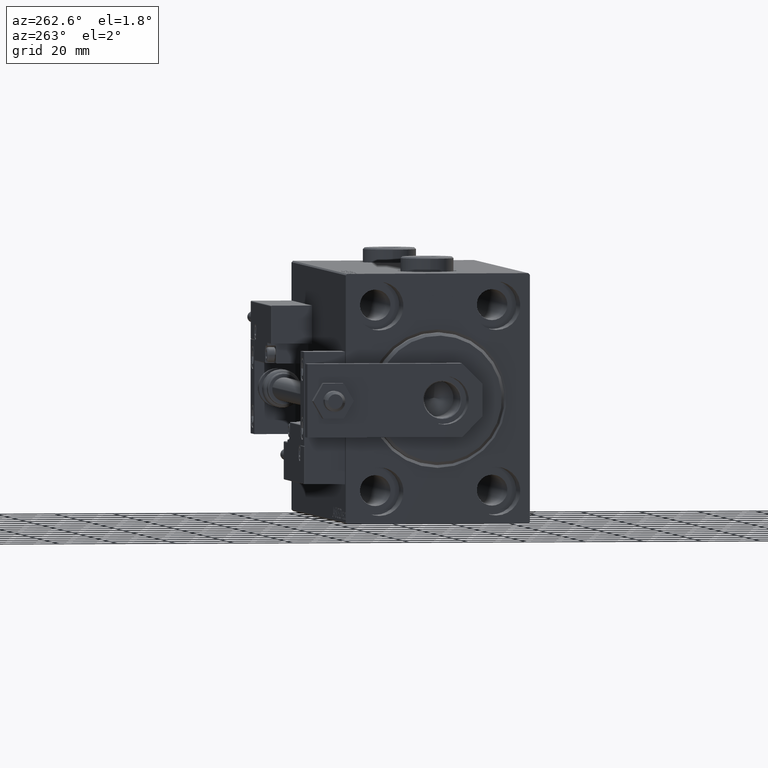
[diagram: clean part render]
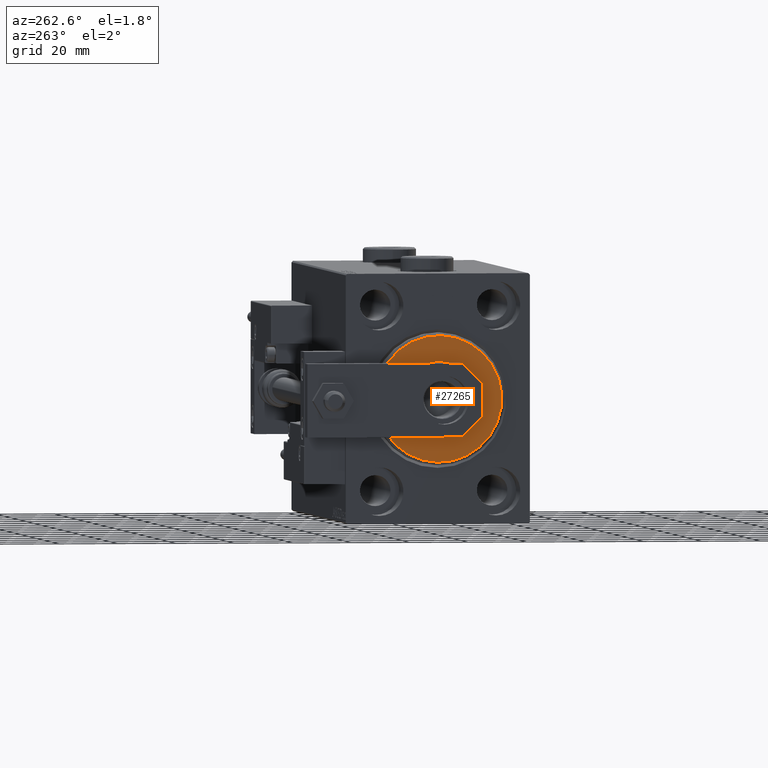
[diagram: same view with one face highlighted and labeled with its STEP entity id]
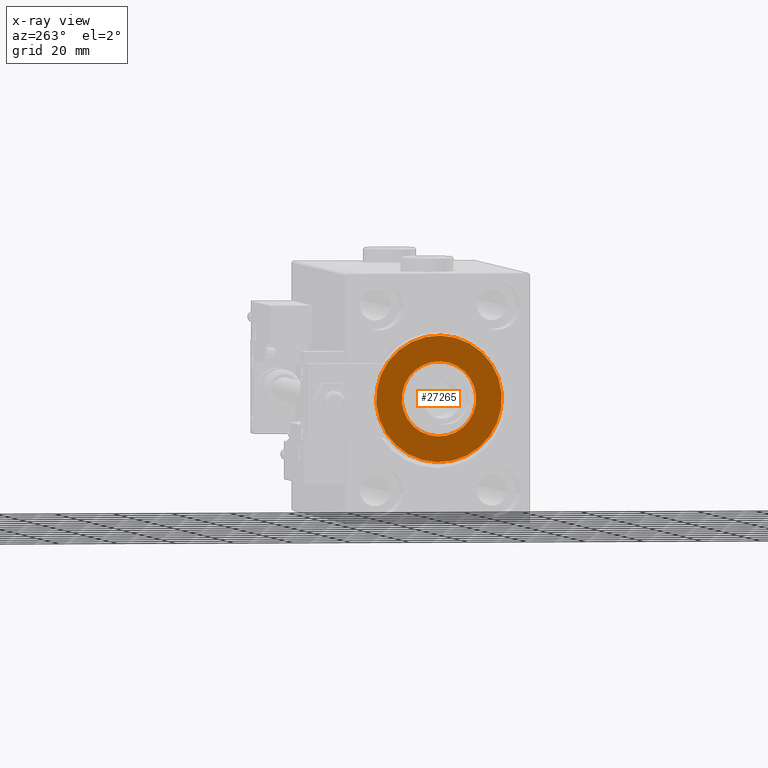
[diagram: x-ray of the same camera — body ghosted, the highlighted face saturated]
A machine part, auxiliary view. The second image highlights one B-rep face of the part: STEP entity #27265.
The next image is the same camera in x-ray: the body ghosted, the highlighted face saturated — about 0% of this face is hidden behind the body in this view.
In plain terms, the highlighted planar face has unit normal (-1, 0, 0).
Its self-contained STEP definition (entity closure, byte-faithful):
#934 = VERTEX_POINT ( 'NONE', #47079 ) ;
#1373 = EDGE_CURVE ( 'NONE', #934, #26161, #18583, .T. ) ;
#1843 = AXIS2_PLACEMENT_3D ( 'NONE', #3909, #15883, #47163 ) ;
#2235 = EDGE_CURVE ( 'NONE', #37076, #4237, #44364, .T. ) ;
#2730 = CARTESIAN_POINT ( 'NONE',  ( 3.000000000000000000, 1.561424668912874914E-15, -12.75000000000000000 ) ) ;
#2733 = AXIS2_PLACEMENT_3D ( 'NONE', #45482, #37681, #17595 ) ;
#3335 = FACE_BOUND ( 'NONE', #47930, .T. ) ;
#3909 = CARTESIAN_POINT ( 'NONE',  ( 3.000000000000000000, 0.000000000000000000, 0.000000000000000000 ) ) ;
#4237 = VERTEX_POINT ( 'NONE', #2730 ) ;
#4384 = PLANE ( 'NONE',  #37695 ) ;
#7023 = AXIS2_PLACEMENT_3D ( 'NONE', #15078, #30204, #30972 ) ;
#8281 = DIRECTION ( 'NONE',  ( 1.000000000000000000, -0.000000000000000000, 0.000000000000000000 ) ) ;
#14542 = CIRCLE ( 'NONE', #7023, 12.75000000000000000 ) ;
#15078 = CARTESIAN_POINT ( 'NONE',  ( 3.000000000000000000, 0.000000000000000000, 0.000000000000000000 ) ) ;
#15883 = DIRECTION ( 'NONE',  ( 1.000000000000000000, -0.000000000000000000, 0.000000000000000000 ) ) ;
#16538 = CARTESIAN_POINT ( 'NONE',  ( 3.000000000000000000, 0.000000000000000000, 12.75000000000000000 ) ) ;
#17564 = ORIENTED_EDGE ( 'NONE', *, *, #1373, .T. ) ;
#17595 = DIRECTION ( 'NONE',  ( 0.000000000000000000, 0.000000000000000000, -1.000000000000000000 ) ) ;
#18583 = CIRCLE ( 'NONE', #2733, 21.50000000000000355 ) ;
#22415 = CARTESIAN_POINT ( 'NONE',  ( 3.000000000000000000, 0.000000000000000000, 0.000000000000000000 ) ) ;
#23053 = ORIENTED_EDGE ( 'NONE', *, *, #30724, .T. ) ;
#24652 = ORIENTED_EDGE ( 'NONE', *, *, #2235, .T. ) ;
#26161 = VERTEX_POINT ( 'NONE', #29988 ) ;
#27265 = ADVANCED_FACE ( 'NONE', ( #31482, #3335 ), #4384, .T. ) ;
#28747 = ORIENTED_EDGE ( 'NONE', *, *, #40986, .T. ) ;
#29988 = CARTESIAN_POINT ( 'NONE',  ( 3.000000000000000000, 2.694222958124177598E-15, -21.50000000000000355 ) ) ;
#30204 = DIRECTION ( 'NONE',  ( -1.000000000000000000, 0.000000000000000000, -0.000000000000000000 ) ) ;
#30670 = EDGE_LOOP ( 'NONE', ( #17564, #28747 ) ) ;
#30724 = EDGE_CURVE ( 'NONE', #4237, #37076, #14542, .T. ) ;
#30972 = DIRECTION ( 'NONE',  ( 0.000000000000000000, 0.000000000000000000, -1.000000000000000000 ) ) ;
#31482 = FACE_OUTER_BOUND ( 'NONE', #30670, .T. ) ;
#33551 = AXIS2_PLACEMENT_3D ( 'NONE', #22415, #38321, #49783 ) ;
#37076 = VERTEX_POINT ( 'NONE', #16538 ) ;
#37681 = DIRECTION ( 'NONE',  ( 1.000000000000000000, -0.000000000000000000, 0.000000000000000000 ) ) ;
#37695 = AXIS2_PLACEMENT_3D ( 'NONE', #51535, #8281, #47634 ) ;
#38321 = DIRECTION ( 'NONE',  ( -1.000000000000000000, 0.000000000000000000, -0.000000000000000000 ) ) ;
#40986 = EDGE_CURVE ( 'NONE', #26161, #934, #42507, .T. ) ;
#42507 = CIRCLE ( 'NONE', #1843, 21.50000000000000355 ) ;
#44364 = CIRCLE ( 'NONE', #33551, 12.75000000000000000 ) ;
#45482 = CARTESIAN_POINT ( 'NONE',  ( 3.000000000000000000, 0.000000000000000000, 0.000000000000000000 ) ) ;
#47079 = CARTESIAN_POINT ( 'NONE',  ( 3.000000000000000000, 0.000000000000000000, 21.50000000000000355 ) ) ;
#47163 = DIRECTION ( 'NONE',  ( 0.000000000000000000, 0.000000000000000000, -1.000000000000000000 ) ) ;
#47634 = DIRECTION ( 'NONE',  ( 0.000000000000000000, 0.000000000000000000, -1.000000000000000000 ) ) ;
#47930 = EDGE_LOOP ( 'NONE', ( #24652, #23053 ) ) ;
#49783 = DIRECTION ( 'NONE',  ( 0.000000000000000000, 0.000000000000000000, -1.000000000000000000 ) ) ;
#51535 = CARTESIAN_POINT ( 'NONE',  ( 3.000000000000000000, 0.000000000000000000, 0.000000000000000000 ) ) ;